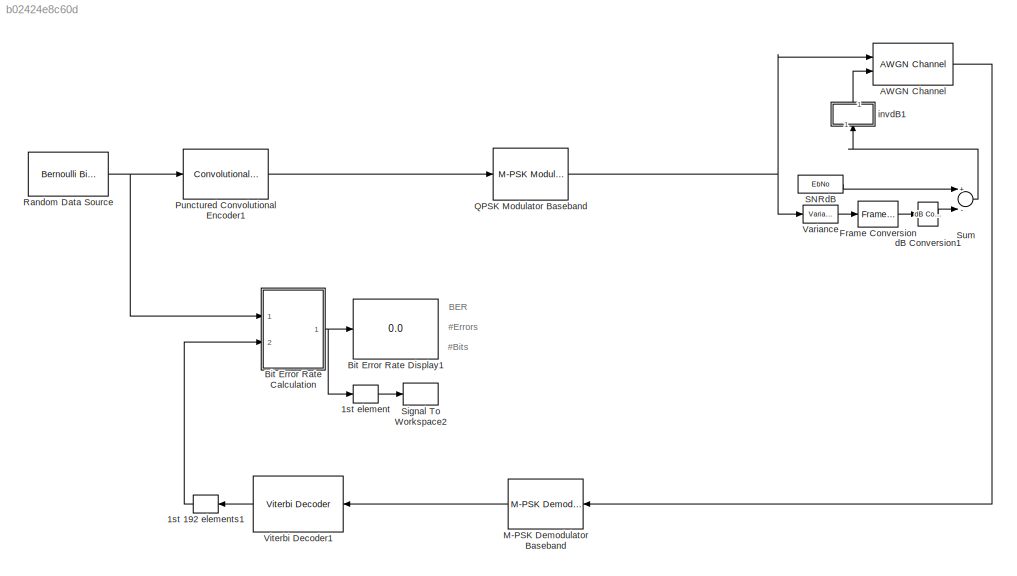
MODEL slx_b02424e8c60d
KIND model
CONFIG PostLoadFcn = if ~exist('EbNo'),EbNo=6;end\nif ~exist('MaxNumBits'),MaxNumBits=1e7;end;\nif ~exist('MaxNumErrs'),MaxNumErrs=1e3;end;\nif ~exist('Seed'),Seed=211;end;\n\nParam.BitsPerFrame=186;\nParam.Len1=186+6;\npre1=0.5*((-1).^(0:1:99)+1);\npre2=0.5*((-1).^(1:100)+1);\nParam.Preamble=complex([pre1 0.0 pre2].');\n\nclear pre1 pre2
BLOCK [Selector] 1st 192 elements1
  IndexOptions = Index vector (dialog),Index vector (dialog)
  Indices = 1:186,1
  InputPortWidth = 3
  NumberOfDimensions = 2
  OutputSizes = 1,1
  Ports = [1, 1]
BLOCK [Selector] 1st element
  InputPortWidth = 3
  Ports = [1, 1]
BLOCK [Reference] AWGN Channel  REF=commchan3/AWGN
Channel
  EbNodB = 10
  EsNodB = 15
  InputProcessing = Columns as channels (frame based)
  Ports = [2, 1]
  Ps = 1
  SNRdB = 10
  SourceBlock = commchan3/AWGN\nChannel
  SourceType = AWGN Channel
  Tsym = 1e-6
  UserDataPersistent = on
  bitsPerSym = 1
  noiseMode = Variance from port
  seed = 67
  variance = 1
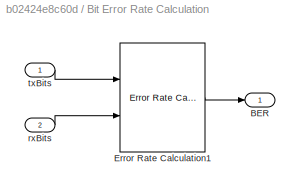
BLOCK [SubSystem] Bit Error Rate Calculation
  Ports = [2, 1]
  RequestExecContextInheritance = off
BLOCK [Outport] Bit Error Rate Calculation/BER
  IconDisplay = Port number
BLOCK [Reference] Bit Error Rate Calculation/Error Rate Calculation1  REF=commsink2/Error Rate
Calculation
  N = 0
  PMode = Port
  Ports = [2, 1]
  RsMode2 = off
  SourceBlock = commsink2/Error Rate\nCalculation
  SourceType = Error Rate Calculation
  WsName = ErrorVec
  cp_mode = Entire frame
  maxBits = MaxNumBits
  numErr = MaxNumErrs
  st_delay = 0
  stop = on
  subframe = 1:184
BLOCK [Inport] Bit Error Rate Calculation/rxBits
  IconDisplay = Port number
  Port = 2
BLOCK [Inport] Bit Error Rate Calculation/txBits
  IconDisplay = Port number
BLOCK [Display] Bit Error Rate Display1
  Decimation = 1
  Ports = [1]
BLOCK [FrameConversion] Frame Conversion
  OutFrame = Sample-based
  Ports = [1, 1]
BLOCK [Reference] M-PSK Demodulator Baseband  REF=commdigbbndpm3/M-PSK
Demodulator
Baseband
  Dec = Gray
  DecType = Hard decision
  M = 4
  Mapping = [0 2 3 1]
  OutType = Bit
  Ph = pi/4
  Ports = [1, 1]
  SourceBlock = commdigbbndpm3/M-PSK\nDemodulator\nBaseband
  SourceType = M-PSK Demodulator Baseband
  VarSource = Dialog
  Variance = 1
  derotateFactorDTMode = Same word length as input
  derotateFactorWordLen = 16
  outDtype1 = boolean
  outDtype2 = Inherit via internal rule
BLOCK [Reference] Punctured Convolutional Encoder1  REF=commcnvcod2/Convolutional
Encoder
  DelayedResetAction = off
  Ports = [1, 1]
  SourceBlock = commcnvcod2/Convolutional\nEncoder
  SourceType = Convolutional Encoder
  hasFinStPort = off
  hasIniStPort = off
  opMode = Terminate trellis by appending bits
  punctureVector = reshape([1 0;1 1],4,1)
  reset = Unused parameter value
  trellis = poly2trellis(7, [171 133])
  usePuncVector = on
BLOCK [Reference] QPSK Modulator Baseband  REF=commdigbbndpm3/M-PSK
Modulator
Baseband
  Enc = Gray
  InType = Bit
  M = 4
  Mapping = [0 2 3 1]
  Ph = pi/4
  Ports = [1, 1]
  SourceBlock = commdigbbndpm3/M-PSK\nModulator\nBaseband
  SourceType = M-PSK Modulator Baseband
  outDtype = double
  outFracLen = 15
  outFracLenMode = Best precision
  outUDDataType = sfix(16)
  outWordLen = 16
BLOCK [Reference] Random Data Source  REF=commrandsrc2/Bernoulli Binary
Generator
  P = 0.5
  Ports = [0, 1]
  SourceBlock = commrandsrc2/Bernoulli Binary\nGenerator
  SourceType = Bernoulli Binary Generator
  Ts = 25/3e6
  frameBased = on
  orient = off
  outDataType = boolean
  sampPerFrame = 186
  seed = 61
BLOCK [Constant] SNRdB
  Value = EbNo
BLOCK [SignalToWorkspace] Signal To Workspace2
  CopyFcn = dspblkcopystw(gcbh);
  MaxDataPoints = 3
  Ports = [1]
  VariableName = ber
BLOCK [Sum] Sum
  InputSameDT = off
  Inputs = +-
  OutDataTypeStr = Inherit: Inherit via internal rule
  Ports = [2, 1]
BLOCK [Reference] Variance  REF=dspstat3/Variance
  InputProcessing = Columns as channels (frame based)
  LockScale = off
  Ports = [1, 1]
  SourceBlock = dspstat3/Variance
  SourceType = Variance
  UserDataPersistent = on
  accumFracLength = 30
  accumMode = Same as input
  accumWordLength = 32
  additionalParams = off
  allowOverrides = on
  dimension = 1
  directionMode = Each column
  memoryFracLength = 30
  memoryMode = Same as input-squared product
  memoryWordLength = 32
  outputFracLength = 30
  outputMode = Same as accumulator
  outputWordLength = 32
  overflowMode = off
  prodOutputFracLength = 30
  prodOutputMode = Same as input
  prodOutputWordLength = 32
  reset_popup = None
  roiEnable = off
  roiFlag = off
  roiOutput = Individual statistics for each ROI
  roiPortion = Entire ROI
  roiType = Rectangles
  roundingMode = Floor
  run = off
  treatSBRowAsCol = on
BLOCK [Reference] Viterbi Decoder1  REF=commcnvcod2/Viterbi Decoder
  Ports = [1, 1]
  SourceBlock = commcnvcod2/Viterbi Decoder
  SourceType = Viterbi Decoder
  dectype = Hard decision
  delayedResetAction = off
  erasures = off
  isPunctured = off
  nsdecb = 4
  opmode = Terminated
  outDataType = boolean
  punctureVector = reshape([1 0;1 1],4,1)
  reset = off
  runSigValErrCheck = off
  smWordLength = 16
  tbdepth = 34
  trellis = poly2trellis(7, [171 133])
BLOCK [Reference] dB Conversion1  REF=dspmathops/dB Conversion
  Ports = [1, 1]
  R = 1
  SourceBlock = dspmathops/dB Conversion
  SourceType = dB Conversion
  dBtype = dB
  fuzz = on
  intype = Power
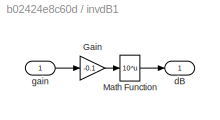
BLOCK [SubSystem] invdB1
  Ports = [1, 1]
  RequestExecContextInheritance = off
BLOCK [Gain] invdB1/Gain
  Gain = -0.1
BLOCK [Math] invdB1/Math Function
  Operator = 10^u
  Ports = [1, 1]
BLOCK [Outport] invdB1/dB
  IconDisplay = Port number
BLOCK [Inport] invdB1/gain
  IconDisplay = Port number
ANNOTATION (root): #Bits
ANNOTATION (root): #Errors
ANNOTATION (root): BER
LINE 1st 192 elements1:1 -> Bit Error Rate Calculation:2
LINE 1st element:1 -> Signal To Workspace2:1
LINE AWGN Channel:1 -> M-PSK Demodulator Baseband:1
LINE Bit Error Rate Calculation/Error Rate Calculation1:1 -> Bit Error Rate Calculation/BER:1
LINE Bit Error Rate Calculation/rxBits:1 -> Bit Error Rate Calculation/Error Rate Calculation1:2
LINE Bit Error Rate Calculation/txBits:1 -> Bit Error Rate Calculation/Error Rate Calculation1:1
NET Bit Error Rate Calculation:1 -> 1st element:1, Bit Error Rate Display1:1
LINE Frame Conversion:1 -> dB Conversion1:1
LINE M-PSK Demodulator Baseband:1 -> Viterbi Decoder1:1
LINE Punctured Convolutional Encoder1:1 -> QPSK Modulator Baseband:1
NET QPSK Modulator Baseband:1 -> AWGN Channel:1, Variance:1
NET Random Data Source:1 -> Bit Error Rate Calculation:1, Punctured Convolutional Encoder1:1
LINE SNRdB:1 -> Sum:1
LINE Sum:1 -> invdB1:1
LINE Variance:1 -> Frame Conversion:1
LINE Viterbi Decoder1:1 -> 1st 192 elements1:1
LINE dB Conversion1:1 -> Sum:2
LINE invdB1/Gain:1 -> invdB1/Math Function:1
LINE invdB1/Math Function:1 -> invdB1/dB:1
LINE invdB1/gain:1 -> invdB1/Gain:1
LINE invdB1:1 -> AWGN Channel:2
note: NET lines group one-source signal fan-out (src -> all destinations, sorted); 1:1 wires keep LINE
